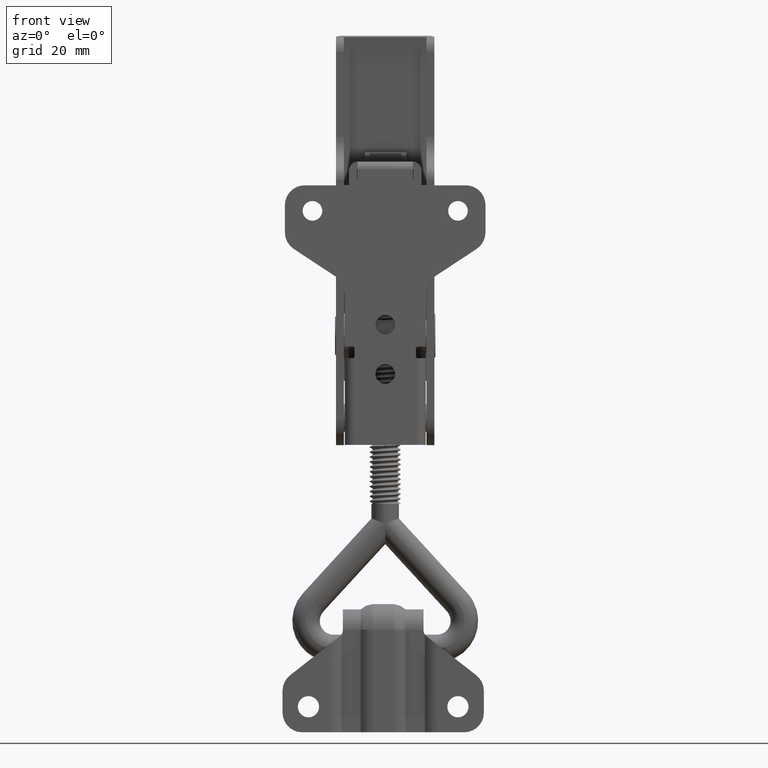
[diagram: clean part render]
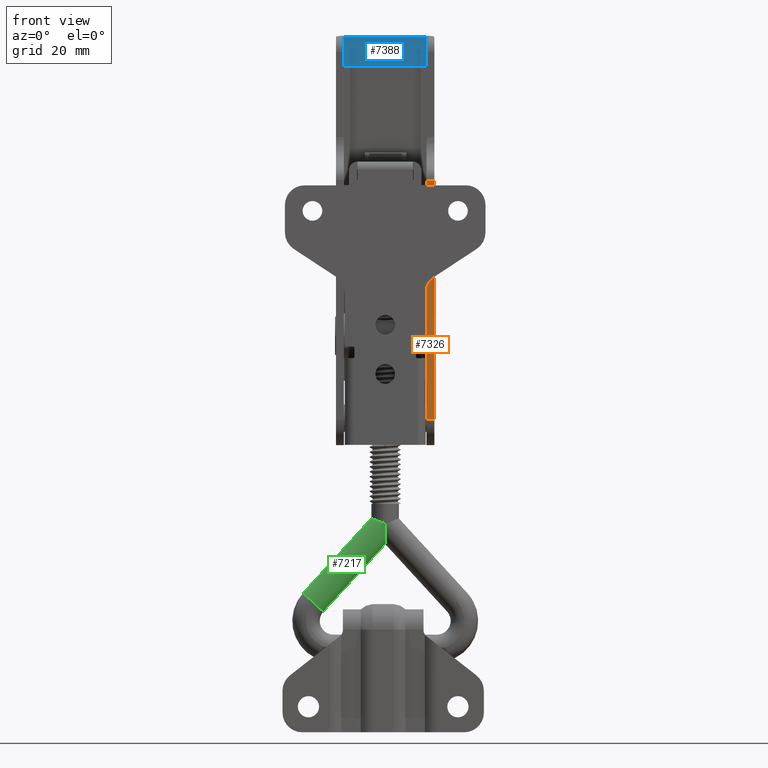
[diagram: same view with three faces highlighted in distinct colors, each labeled with its STEP entity id]
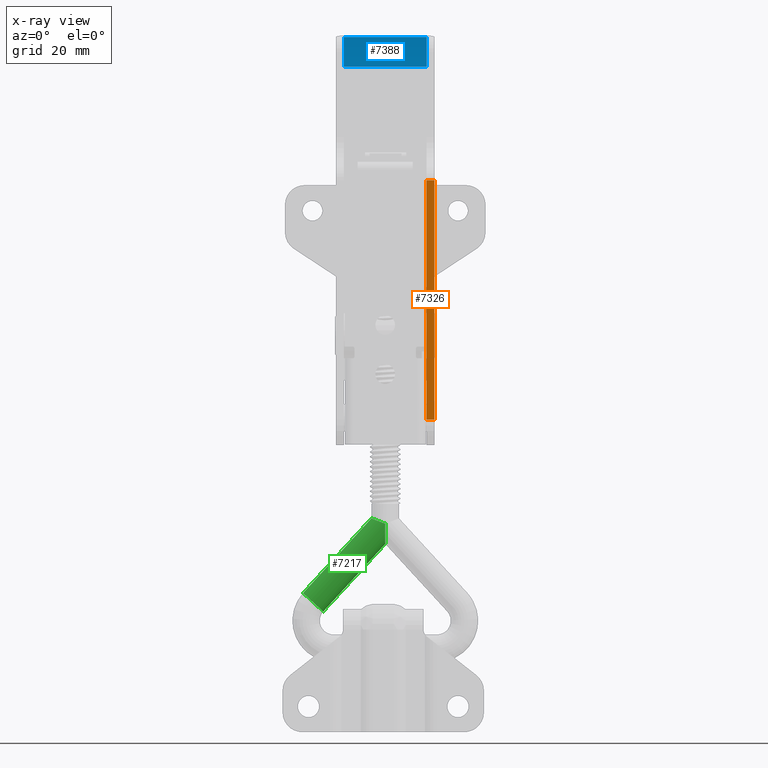
[diagram: x-ray of the same camera — body ghosted, the three highlighted faces saturated]
A machine part, front view with three faces highlighted in distinct colors.
The next image is the same camera in x-ray (body ghosted, the three faces saturated) — at least one of them is partly hidden behind the body in this view.
Their STEP definitions:

[orange] entity #7326 — the highlighted planar face has unit normal (0, 0.9991, 0.0419).
#552=PLANE('',#7901);
#955=LINE('',#33302,#1489);
#956=LINE('',#33305,#1490);
#957=LINE('',#33307,#1491);
#958=LINE('',#33308,#1492);
#1489=VECTOR('',#9381,2.);
#1490=VECTOR('',#9384,60.9);
#1491=VECTOR('',#9385,60.9);
#1492=VECTOR('',#9386,2.);
#1992=FACE_OUTER_BOUND('',#2404,.T.);
#2404=EDGE_LOOP('',(#6204,#6205,#6206,#6207));
#3431=VERTEX_POINT('',#33295);
#3434=VERTEX_POINT('',#33300);
#3435=VERTEX_POINT('',#33304);
#3436=VERTEX_POINT('',#33306);
#4404=EDGE_CURVE('',#3434,#3431,#955,.T.);
#4405=EDGE_CURVE('',#3435,#3431,#956,.T.);
#4406=EDGE_CURVE('',#3436,#3434,#957,.T.);
#4407=EDGE_CURVE('',#3436,#3435,#958,.T.);
#6204=ORIENTED_EDGE('',*,*,#4405,.T.);
#6205=ORIENTED_EDGE('',*,*,#4404,.F.);
#6206=ORIENTED_EDGE('',*,*,#4406,.F.);
#6207=ORIENTED_EDGE('',*,*,#4407,.T.);
#7326=ADVANCED_FACE('',(#1992),#552,.F.);
#7901=AXIS2_PLACEMENT_3D('',#33303,#9382,#9383);
#9381=DIRECTION('',(1.13948260345753E-16,8.15032579281723E-16,-1.));
#9382=DIRECTION('center_axis',(0.0420682296284348,0.999114740185495,7.93938788340839E-16));
#9383=DIRECTION('ref_axis',(-0.999114740185495,0.042068229628434,0.));
#9384=DIRECTION('',(0.999114740185495,-0.0420682296284348,6.13773460030997E-17));
#9385=DIRECTION('',(0.999114740185495,-0.0420682296284348,6.13773460030997E-17));
#9386=DIRECTION('',(1.13948260345753E-16,8.15032579281723E-16,-1.));
#33295=CARTESIAN_POINT('',(60.4969213713806,-10.8546075279113,-12.5));
#33300=CARTESIAN_POINT('',(60.4969213713806,-10.8546075279113,-10.5));
#33302=CARTESIAN_POINT('',(60.4969213713806,-10.8546075279113,-10.5));
#33303=CARTESIAN_POINT('Origin',(-0.349166305916009,-8.29265234353961,-10.5));
#33304=CARTESIAN_POINT('',(-0.349166305916009,-8.2926523435396,-12.5));
#33305=CARTESIAN_POINT('',(-0.349166305916009,-8.2926523435396,-12.5));
#33306=CARTESIAN_POINT('',(-0.349166305916009,-8.29265234353961,-10.5));
#33307=CARTESIAN_POINT('',(-0.349166305916009,-8.29265234353961,-10.5));
#33308=CARTESIAN_POINT('',(-0.349166305916009,-8.29265234353961,-10.5));

[blue] entity #7388 — the highlighted cylindrical surface (partial cylindrical patch) has radius 56.5 mm, axis along (1, -0, 0).
#1010=LINE('',#33502,#1544);
#1061=LINE('',#33648,#1595);
#1544=VECTOR('',#9590,21.);
#1595=VECTOR('',#9739,21.);
#2054=FACE_OUTER_BOUND('',#2487,.T.);
#2487=EDGE_LOOP('',(#6550,#6551,#6552,#6553));
#2784=CIRCLE('',#7923,56.5000000000001);
#2802=CIRCLE('',#7950,56.5000000000001);
#3456=VERTEX_POINT('',#33362);
#3459=VERTEX_POINT('',#33369);
#3483=VERTEX_POINT('',#33431);
#3484=VERTEX_POINT('',#33432);
#4440=EDGE_CURVE('',#3459,#3456,#2784,.T.);
#4466=EDGE_CURVE('',#3483,#3484,#2802,.T.);
#4501=EDGE_CURVE('',#3484,#3456,#1010,.T.);
#4574=EDGE_CURVE('',#3459,#3483,#1061,.T.);
#6550=ORIENTED_EDGE('',*,*,#4501,.F.);
#6551=ORIENTED_EDGE('',*,*,#4466,.F.);
#6552=ORIENTED_EDGE('',*,*,#4574,.F.);
#6553=ORIENTED_EDGE('',*,*,#4440,.T.);
#7059=CYLINDRICAL_SURFACE('',#8027,56.5000000000001);
#7388=ADVANCED_FACE('',(#2054),#7059,.F.);
#7923=AXIS2_PLACEMENT_3D('',#33373,#9449,#9450);
#7950=AXIS2_PLACEMENT_3D('',#33433,#9511,#9512);
#8027=AXIS2_PLACEMENT_3D('',#33649,#9740,#9741);
#9449=DIRECTION('center_axis',(1.13948260345753E-16,8.15032579281723E-16,
-1.));
#9450=DIRECTION('ref_axis',(-0.999114740185495,0.0420682296284349,-7.95604088300571E-17));
#9511=DIRECTION('center_axis',(1.13948260345753E-16,8.15032579281723E-16,
-1.));
#9512=DIRECTION('ref_axis',(-0.999114740185495,0.0420682296284349,-7.95604088300571E-17));
#9590=DIRECTION('',(1.13948260345753E-16,8.15032579281723E-16,-1.));
#9739=DIRECTION('',(-1.13948260345753E-16,-8.15032579281723E-16,1.));
#9740=DIRECTION('center_axis',(1.13948260345753E-16,8.15032579281723E-16,
-1.));
#9741=DIRECTION('ref_axis',(-0.999114740185495,0.0420682296284349,-7.95604088300571E-17));
#33362=CARTESIAN_POINT('',(96.896252514448,2.62607095417316,-10.5));
#33369=CARTESIAN_POINT('',(89.4239260778709,3.44114004647919,-10.5));
#33373=CARTESIAN_POINT('Origin',(87.0470711038644,-53.0088427740014,-10.5));
#33431=CARTESIAN_POINT('',(89.4239260778709,3.44114004647917,10.5));
#33432=CARTESIAN_POINT('',(96.896252514448,2.62607095417315,10.5));
#33433=CARTESIAN_POINT('Origin',(87.0470711038644,-53.0088427740014,10.5));
#33502=CARTESIAN_POINT('',(96.8962525144479,2.62607095417316,10.5));
#33648=CARTESIAN_POINT('',(89.423926077871,3.44114004647917,10.5));
#33649=CARTESIAN_POINT('Origin',(87.0470711038644,-53.0088427740014,10.5));

[green] entity #7217 — the highlighted cylindrical surface (bore or boss wall) has radius 3.5 mm, axis along (-0.6756, -0, -0.7373).
#61=ELLIPSE('',#7677,40.1579963598428,3.5);
#63=ELLIPSE('',#7687,40.1579963598428,3.5);
#64=ELLIPSE('',#7690,3.75533309895048,3.5);
#65=ELLIPSE('',#7691,3.75533309895047,3.5);
#66=ELLIPSE('',#7692,5.18065531522795,3.5);
#67=ELLIPSE('',#7693,3.75533309895047,3.5);
#1707=FACE_BOUND('',#2281,.T.);
#1883=FACE_OUTER_BOUND('',#2280,.T.);
#2280=EDGE_LOOP('',(#5668,#5669,#5670,#5671,#5672,#5673));
#2281=EDGE_LOOP('',(#5674));
#2675=CIRCLE('',#7682,3.5);
#3248=VERTEX_POINT('',#32722);
#3249=VERTEX_POINT('',#32724);
#3252=VERTEX_POINT('',#32733);
#3254=VERTEX_POINT('',#32739);
#3256=VERTEX_POINT('',#32742);
#3257=VERTEX_POINT('',#32746);
#3258=VERTEX_POINT('',#32747);
#4130=EDGE_CURVE('',#3249,#3248,#61,.T.);
#4133=EDGE_CURVE('',#3252,#3252,#2675,.T.);
#4136=EDGE_CURVE('',#3254,#3256,#63,.T.);
#4138=EDGE_CURVE('',#3257,#3258,#64,.T.);
#4139=EDGE_CURVE('',#3248,#3257,#65,.T.);
#4140=EDGE_CURVE('',#3249,#3256,#66,.T.);
#4141=EDGE_CURVE('',#3258,#3254,#67,.T.);
#5668=ORIENTED_EDGE('',*,*,#4138,.F.);
#5669=ORIENTED_EDGE('',*,*,#4139,.F.);
#5670=ORIENTED_EDGE('',*,*,#4130,.F.);
#5671=ORIENTED_EDGE('',*,*,#4140,.T.);
#5672=ORIENTED_EDGE('',*,*,#4136,.F.);
#5673=ORIENTED_EDGE('',*,*,#4141,.F.);
#5674=ORIENTED_EDGE('',*,*,#4133,.F.);
#6992=CYLINDRICAL_SURFACE('',#7689,3.5);
#7217=ADVANCED_FACE('',(#1883,#1707),#6992,.T.);
#7677=AXIS2_PLACEMENT_3D('',#32726,#8766,#8767);
#7682=AXIS2_PLACEMENT_3D('',#32734,#8776,#8777);
#7687=AXIS2_PLACEMENT_3D('',#32743,#8786,#8787);
#7689=AXIS2_PLACEMENT_3D('',#32745,#8790,#8791);
#7690=AXIS2_PLACEMENT_3D('',#32748,#8792,#8793);
#7691=AXIS2_PLACEMENT_3D('',#32749,#8794,#8795);
#7692=AXIS2_PLACEMENT_3D('',#32750,#8796,#8797);
#7693=AXIS2_PLACEMENT_3D('',#32751,#8798,#8799);
#8766=DIRECTION('center_axis',(-0.737277336810127,0.,-0.675590207615658));
#8767=DIRECTION('ref_axis',(0.675590207615658,0.,-0.737277336810127));
#8776=DIRECTION('center_axis',(-0.737277336810124,0.,0.67559020761566));
#8777=DIRECTION('ref_axis',(0.,1.,0.));
#8786=DIRECTION('center_axis',(-0.737277336810127,0.,-0.675590207615658));
#8787=DIRECTION('ref_axis',(0.675590207615658,0.,-0.737277336810127));
#8790=DIRECTION('center_axis',(-0.737277336810124,0.,0.67559020761566));
#8791=DIRECTION('ref_axis',(0.,1.,0.));
#8792=DIRECTION('center_axis',(0.9320078692828,0.,-0.362438038283698));
#8793=DIRECTION('ref_axis',(-0.362438038283698,0.,-0.9320078692828));
#8794=DIRECTION('center_axis',(0.932007869282798,0.,-0.362438038283702));
#8795=DIRECTION('ref_axis',(0.362438038283702,0.,0.932007869282798));
#8796=DIRECTION('center_axis',(4.17888233493449E-15,0.,1.));
#8797=DIRECTION('ref_axis',(-1.,0.,4.17888233493449E-15));
#8798=DIRECTION('center_axis',(0.932007869282798,0.,-0.362438038283702));
#8799=DIRECTION('ref_axis',(0.362438038283702,0.,0.932007869282798));
#32722=CARTESIAN_POINT('',(-25.6477988879871,1.81389378258347,-0.153817379568694));
#32724=CARTESIAN_POINT('',(-25.7887465479913,1.81464630847565,-3.09790995728534E-13));
#32726=CARTESIAN_POINT('Origin',(-26.8401186608629,-1.68272461434557,1.14737132456368));
#32733=CARTESIAN_POINT('',(-45.5708685466907,-5.18272461434557,18.3109413576709));
#32734=CARTESIAN_POINT('Origin',(-45.5708685466907,-1.68272461434557,18.3109413576709));
#32739=CARTESIAN_POINT('',(-25.6477988879871,-5.17934301127461,-0.153817379568694));
#32742=CARTESIAN_POINT('',(-25.7887465479913,-5.18009553716679,-3.09790995728534E-13));
#32743=CARTESIAN_POINT('Origin',(-26.8401186608629,-1.68272461434557,1.14737132456368));
#32745=CARTESIAN_POINT('Origin',(-25.5879825804835,-1.68272461434557,-1.39414603630132E-15));
#32746=CARTESIAN_POINT('',(-25.5879825804835,1.81727538565443,-1.39414603630132E-15));
#32747=CARTESIAN_POINT('',(-25.5879825804835,-5.18272461434557,-1.82277241600289E-15));
#32748=CARTESIAN_POINT('Origin',(-25.5879825804835,-1.68272461434557,-1.39414603630132E-15));
#32749=CARTESIAN_POINT('Origin',(-25.5879825804835,-1.68272461434557,4.97257415288094E-15));
#32750=CARTESIAN_POINT('Origin',(-25.5879825804832,-1.68272461434557,-3.08642000845794E-13));
#32751=CARTESIAN_POINT('Origin',(-25.5879825804835,-1.68272461434557,4.97257415288094E-15));